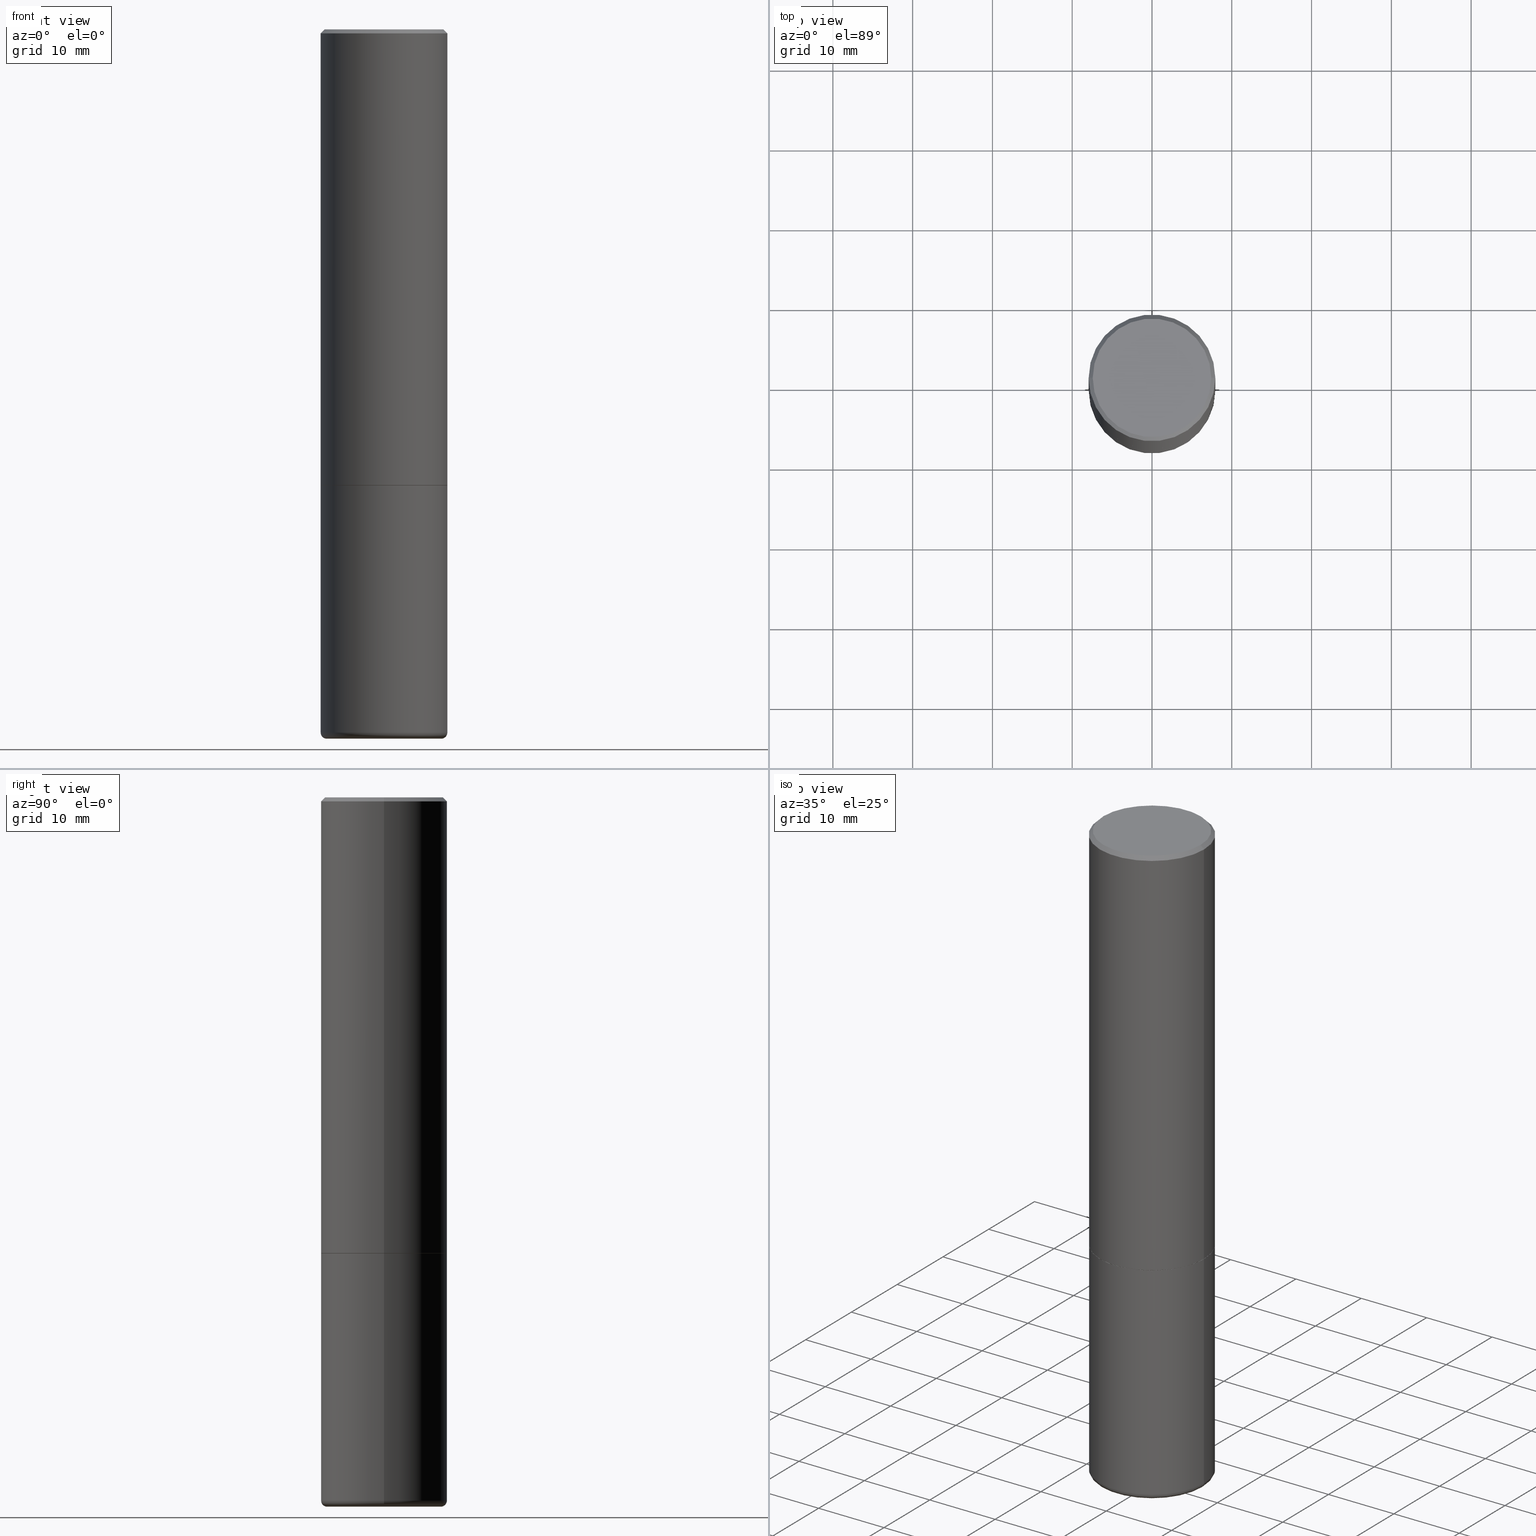
[diagram: canonical four-view strip — front | top / right | iso, engineering-drawing reading convention]
A machine part, canonical four-view strip (front | top / right | iso — engineering-drawing reading convention). The complete STEP part file that produces these views, byte-faithful:
ISO-10303-21;
HEADER;
FILE_DESCRIPTION (( 'STEP AP203' ),
    '1' );
FILE_NAME ('38181.STEP',
    '2023-03-22T20:30:28',
    ( '' ),
    ( '' ),
    'SwSTEP 2.0',
    'SolidWorks 2022',
    '' );
FILE_SCHEMA (( 'CONFIG_CONTROL_DESIGN' ));
ENDSEC;

DATA;
#1 = CIRCLE ( 'NONE', #438, 0.3125000000000000000 ) ;
#2 = ORIENTED_EDGE ( 'NONE', *, *, #403, .T. ) ;
#3 = EDGE_CURVE ( 'NONE', #324, #387, #235, .T. ) ;
#4 = APPROVAL_STATUS ( 'not_yet_approved' ) ;
#5 = DIRECTION ( 'NONE',  ( 1.000000000000000000, -6.982962677686266711E-15, 0.000000000000000000 ) ) ;
#6 = ORIENTED_EDGE ( 'NONE', *, *, #53, .T. ) ;
#7 = ADVANCED_FACE ( 'NONE', ( #125 ), #371, .T. ) ;
#8 = EDGE_CURVE ( 'NONE', #115, #405, #16, .T. ) ;
#9 = PERSON_AND_ORGANIZATION ( #55, #318 ) ;
#10 = AXIS2_PLACEMENT_3D ( 'NONE', #244, #210, #5 ) ;
#11 = APPROVAL_PERSON_ORGANIZATION ( #112, #364, #13 ) ;
#12 = ORIENTED_EDGE ( 'NONE', *, *, #86, .F. ) ;
#13 = APPROVAL_ROLE ( '' ) ;
#14 = DIRECTION ( 'NONE',  ( 1.000000000000000000, -6.982962677686266711E-15, 4.876067333457692840E-29 ) ) ;
#15 = EDGE_CURVE ( 'NONE', #161, #79, #159, .T. ) ;
#16 = LINE ( 'NONE', #155, #21 ) ;
#17 = ORIENTED_EDGE ( 'NONE', *, *, #411, .F. ) ;
#18 = FACE_OUTER_BOUND ( 'NONE', #26, .T. ) ;
#19 = DIRECTION ( 'NONE',  ( -2.445468806185136597E-29, 3.491481338843145583E-15, 1.000000000000000000 ) ) ;
#20 = EDGE_LOOP ( 'NONE', ( #426, #434, #252, #359 ) ) ;
#21 = VECTOR ( 'NONE', #290, 39.37007874015748854 ) ;
#22 = ORIENTED_EDGE ( 'NONE', *, *, #15, .T. ) ;
#23 = DIRECTION ( 'NONE',  ( 1.000000000000000000, -6.982962677686265133E-15, 0.000000000000000000 ) ) ;
#24 = ADVANCED_FACE ( 'NONE', ( #370 ), #67, .T. ) ;
#25 = AXIS2_PLACEMENT_3D ( 'NONE', #80, #386, #211 ) ;
#26 = EDGE_LOOP ( 'NONE', ( #178, #192, #390, #305 ) ) ;
#27 = CARTESIAN_POINT ( 'NONE',  ( 5.502304813916556222E-29, -7.855833012397076871E-15, -2.249999999999999556 ) ) ;
#28 = ORIENTED_EDGE ( 'NONE', *, *, #368, .F. ) ;
#29 = DIRECTION ( 'NONE',  ( -2.445468806185136597E-29, 3.491481338843145583E-15, 1.000000000000000000 ) ) ;
#30 = CARTESIAN_POINT ( 'NONE',  ( 2.182175836777013173E-15, 0.3124999999999921729, -2.250000000000000444 ) ) ;
#31 = CIRCLE ( 'NONE', #325, 0.02999999999999998848 ) ;
#32 = PERSON_AND_ORGANIZATION_ROLE ( 'classification_officer' ) ;
#33 = CARTESIAN_POINT ( 'NONE',  ( -0.3124999999999998335, 2.112346210000093866E-15, -0.02000000000000001776 ) ) ;
#34 = ORIENTED_EDGE ( 'NONE', *, *, #105, .T. ) ;
#35 = DIRECTION ( 'NONE',  ( 0.000000000000000000, 0.000000000000000000, 1.000000000000000000 ) ) ;
#36 = DIRECTION ( 'NONE',  ( -1.000000000000000000, 6.982962677686265922E-15, -4.876176775795935793E-29 ) ) ;
#37 = DIRECTION ( 'NONE',  ( 1.000000000000000000, 0.000000000000000000, 0.000000000000000000 ) ) ;
#38 = DIRECTION ( 'NONE',  ( -2.445468806185136597E-29, 3.491481338843145583E-15, 1.000000000000000000 ) ) ;
#39 = AXIS2_PLACEMENT_3D ( 'NONE', #167, #378, #94 ) ;
#40 = DIRECTION ( 'NONE',  ( -1.000000000000000000, 6.982962677686265133E-15, 0.000000000000000000 ) ) ;
#41 = ORIENTED_EDGE ( 'NONE', *, *, #214, .F. ) ;
#42 = APPROVAL_DATE_TIME ( #97, #158 ) ;
#43 = DATE_TIME_ROLE ( 'classification_date' ) ;
#44 = DIRECTION ( 'NONE',  ( -2.445468806185136877E-29, 3.491481338843145188E-15, 1.000000000000000000 ) ) ;
#45 = AXIS2_PLACEMENT_3D ( 'NONE', #204, #29, #169 ) ;
#46 = ORIENTED_EDGE ( 'NONE', *, *, #187, .F. ) ;
#47 = CARTESIAN_POINT ( 'NONE',  ( 4.890937612370276662E-31, -6.982962677686296539E-17, -0.02000000000000001776 ) ) ;
#48 = DIRECTION ( 'NONE',  ( 1.000000000000000000, -6.982962677686270655E-15, 0.000000000000000000 ) ) ;
#49 = ORIENTED_EDGE ( 'NONE', *, *, #53, .F. ) ;
#50 = APPROVAL ( #420, 'UNSPECIFIED' ) ;
#51 = CARTESIAN_POINT ( 'NONE',  ( 0.3124999999999998335, -2.213735251080465334E-15, -0.02000000000000001776 ) ) ;
#52 = AXIS2_PLACEMENT_3D ( 'NONE', #402, #196, #338 ) ;
#53 = EDGE_CURVE ( 'NONE', #115, #432, #203, .T. ) ;
#54 = VECTOR ( 'NONE', #44, 39.37007874015748143 ) ;
#55 = PERSON ( 'UNSPECIFIED', 'UNSPECIFIED', 'UNSPECIFIED', ('UNSPECIFIED'), ('UNSPECIFIED'), ('UNSPECIFIED') ) ;
#56 = DIRECTION ( 'NONE',  ( -1.000000000000000000, 6.982962677686265922E-15, 0.000000000000000000 ) ) ;
#57 = DIRECTION ( 'NONE',  ( 1.000000000000000000, -6.982962677686269077E-15, 0.000000000000000000 ) ) ;
#58 = LINE ( 'NONE', #165, #60 ) ;
#59 = CONICAL_SURFACE ( 'NONE', #121, 751.2258538476580725, 1.518436449235073038 ) ;
#60 = VECTOR ( 'NONE', #128, 39.37007874015748143 ) ;
#61 = VERTEX_POINT ( 'NONE', #132 ) ;
#62 = CARTESIAN_POINT ( 'NONE',  ( 1.048014358525195474E-27, -1.496286751389202806E-13, -42.85535582684732248 ) ) ;
#63 = PRODUCT_RELATED_PRODUCT_CATEGORY ( 'detail', '', ( #198 ) ) ;
#64 = CARTESIAN_POINT ( 'NONE',  ( 5.502304813916556222E-29, -7.855833012397076871E-15, -2.249999999999999556 ) ) ;
#65 = SECURITY_CLASSIFICATION_LEVEL ( 'unclassified' ) ;
#66 = DIRECTION ( 'NONE',  ( 1.000000000000000000, -6.982962677686266711E-15, 4.876176775795936353E-29 ) ) ;
#67 = TOROIDAL_SURFACE ( 'NONE', #39, 0.2825000000000000289, 0.02999999999999998848 ) ;
#68 = LOCAL_TIME ( 16, 30, 28.00000000000000000, #141 ) ;
#69 = COORDINATED_UNIVERSAL_TIME_OFFSET ( 5, 0, .BEHIND. ) ;
#70 = DIRECTION ( 'NONE',  ( -2.445468806185136597E-29, 3.491481338843145583E-15, 1.000000000000000000 ) ) ;
#71 = CARTESIAN_POINT ( 'NONE',  ( 0.2924999999999998157, -2.110215457714318748E-15, 4.268512490114932791E-18 ) ) ;
#72 = ADVANCED_FACE ( 'NONE', ( #92 ), #242, .T. ) ;
#73 = DIRECTION ( 'NONE',  ( 1.000000000000000000, -6.982962677686266711E-15, 0.000000000000000000 ) ) ;
#74 = CIRCLE ( 'NONE', #45, 0.2809299213127118833 ) ;
#75 =( LENGTH_UNIT ( ) NAMED_UNIT ( * ) SI_UNIT ( $, .METRE. ) );
#76 =( GEOMETRIC_REPRESENTATION_CONTEXT ( 3 ) GLOBAL_UNCERTAINTY_ASSIGNED_CONTEXT ( ( #337 ) ) GLOBAL_UNIT_ASSIGNED_CONTEXT ( ( #385, #319, #354 ) ) REPRESENTATION_CONTEXT ( 'NONE', 'WORKASPACE' ) );
#77 = VERTEX_POINT ( 'NONE', #133 ) ;
#78 = DIRECTION ( 'NONE',  ( -0.7071067811864267805, 7.493145998869918709E-15, 0.7071067811866682540 ) ) ;
#79 = VERTEX_POINT ( 'NONE', #344 ) ;
#80 = CARTESIAN_POINT ( 'NONE',  ( 8.485877300362652309E-29, -1.211558379440060973E-14, -3.470041113957361922 ) ) ;
#81 = SHAPE_DEFINITION_REPRESENTATION ( #207, #416 ) ;
#82 = CIRCLE ( 'NONE', #199, 0.3125000000000000000 ) ;
#83 = EDGE_LOOP ( 'NONE', ( #296, #17, #131, #163 ) ) ;
#84 = DIMENSIONAL_EXPONENTS ( 1.000000000000000000, 0.000000000000000000, 0.000000000000000000, 0.000000000000000000, 0.000000000000000000, 0.000000000000000000, 0.000000000000000000 ) ;
#85 = CARTESIAN_POINT ( 'NONE',  ( 0.3124999999999998890, -2.182175836776957558E-15, 1.523805242436229235E-29 ) ) ;
#86 = EDGE_CURVE ( 'NONE', #161, #123, #269, .T. ) ;
#87 = ORIENTED_EDGE ( 'NONE', *, *, #397, .T. ) ;
#88 = CIRCLE ( 'NONE', #400, 0.3114999999999999991 ) ;
#89 = APPROVAL_PERSON_ORGANIZATION ( #440, #50, #249 ) ;
#90 = DIRECTION ( 'NONE',  ( 0.7071067811864267805, -2.468850131080992517E-15, 0.7071067811866682540 ) ) ;
#91 = EDGE_CURVE ( 'NONE', #61, #118, #308, .T. ) ;
#92 = FACE_OUTER_BOUND ( 'NONE', #321, .T. ) ;
#93 = DIRECTION ( 'NONE',  ( -2.445468806185136597E-29, 3.491481338843145583E-15, 1.000000000000000000 ) ) ;
#94 = DIRECTION ( 'NONE',  ( 1.000000000000000000, -6.982962677686269077E-15, 4.883557194083114022E-29 ) ) ;
#95 = EDGE_CURVE ( 'NONE', #77, #189, #423, .T. ) ;
#96 = EDGE_CURVE ( 'NONE', #405, #432, #74, .T. ) ;
#97 = DATE_AND_TIME ( #282, #286 ) ;
#98 = DIRECTION ( 'NONE',  ( -2.445468806185136597E-29, 3.491481338843145583E-15, 1.000000000000000000 ) ) ;
#99 = ADVANCED_FACE ( 'NONE', ( #439 ), #226, .F. ) ;
#100 = DIRECTION ( 'NONE',  ( -2.445468806185136597E-29, 3.491481338843145583E-15, 1.000000000000000000 ) ) ;
#101 = AXIS2_PLACEMENT_3D ( 'NONE', #248, #100, #181 ) ;
#102 = LOCAL_TIME ( 16, 30, 28.00000000000000000, #106 ) ;
#103 = FACE_OUTER_BOUND ( 'NONE', #246, .T. ) ;
#104 = CC_DESIGN_PERSON_AND_ORGANIZATION_ASSIGNMENT ( #284, #237, ( #334 ) ) ;
#105 = EDGE_CURVE ( 'NONE', #189, #77, #357, .T. ) ;
#106 = COORDINATED_UNIVERSAL_TIME_OFFSET ( 5, 0, .BEHIND. ) ;
#107 = CARTESIAN_POINT ( 'NONE',  ( -0.3125000000000000000, -7.765262354148530218E-15, -3.470041113957361922 ) ) ;
#108 = ORIENTED_EDGE ( 'NONE', *, *, #327, .T. ) ;
#109 = ORIENTED_EDGE ( 'NONE', *, *, #360, .T. ) ;
#110 = ORIENTED_EDGE ( 'NONE', *, *, #113, .F. ) ;
#111 = AXIS2_PLACEMENT_3D ( 'NONE', #442, #38, #441 ) ;
#112 = PERSON_AND_ORGANIZATION ( #55, #318 ) ;
#113 = EDGE_CURVE ( 'NONE', #123, #161, #88, .T. ) ;
#114 = EDGE_LOOP ( 'NONE', ( #202, #168 ) ) ;
#115 = VERTEX_POINT ( 'NONE', #433 ) ;
#116 = DIRECTION ( 'NONE',  ( -1.000000000000000000, 6.982962677686265922E-15, 0.000000000000000000 ) ) ;
#117 = EDGE_LOOP ( 'NONE', ( #49, #304, #41 ) ) ;
#118 = VERTEX_POINT ( 'NONE', #437 ) ;
#119 = COORDINATED_UNIVERSAL_TIME_OFFSET ( 5, 0, .BEHIND. ) ;
#120 = CARTESIAN_POINT ( 'NONE',  ( -1.043851414335219820E-46, 1.490343170380447200E-32, 4.268512490100411279E-18 ) ) ;
#121 = AXIS2_PLACEMENT_3D ( 'NONE', #425, #209, #116 ) ;
#122 = ADVANCED_FACE ( 'NONE', ( #345 ), #127, .F. ) ;
#123 = VERTEX_POINT ( 'NONE', #173 ) ;
#124 = ADVANCED_FACE ( 'NONE', ( #410 ), #333, .T. ) ;
#125 = FACE_OUTER_BOUND ( 'NONE', #283, .T. ) ;
#126 = AXIS2_PLACEMENT_3D ( 'NONE', #218, #361, #188 ) ;
#127 = PLANE ( 'NONE',  #407 ) ;
#128 = DIRECTION ( 'NONE',  ( -2.445468806185136877E-29, 3.491481338843145188E-15, 1.000000000000000000 ) ) ;
#129 = ADVANCED_FACE ( 'NONE', ( #307 ), #138, .T. ) ;
#130 = APPLICATION_CONTEXT ( 'configuration controlled 3d designs of mechanical parts and assemblies' ) ;
#131 = ORIENTED_EDGE ( 'NONE', *, *, #136, .T. ) ;
#132 = CARTESIAN_POINT ( 'NONE',  ( -0.3125000000000000000, -7.765262354148530218E-15, -2.249999999999999556 ) ) ;
#133 = CARTESIAN_POINT ( 'NONE',  ( 0.3125000000000000000, -1.429775963117756807E-14, -3.470041113957361922 ) ) ;
#134 = VECTOR ( 'NONE', #228, 39.37007874015748143 ) ;
#135 = MANIFOLD_SOLID_BREP ( 'Body-Move/Copy2[2]', #350 ) ;
#136 = EDGE_CURVE ( 'NONE', #387, #392, #205, .T. ) ;
#137 = ORIENTED_EDGE ( 'NONE', *, *, #201, .F. ) ;
#138 = CYLINDRICAL_SURFACE ( 'NONE', #383, 0.3125000000000000000 ) ;
#139 = PERSON_AND_ORGANIZATION_ROLE ( 'design_owner' ) ;
#140 = CARTESIAN_POINT ( 'NONE',  ( 0.000000000000000000, 0.000000000000000000, 0.000000000000000000 ) ) ;
#141 = COORDINATED_UNIVERSAL_TIME_OFFSET ( 5, 0, .BEHIND. ) ;
#142 = DIRECTION ( 'NONE',  ( 7.105427357601001859E-15, 1.000000000000000000, -3.491481338843145583E-15 ) ) ;
#143 = VECTOR ( 'NONE', #310, 39.37007874015748854 ) ;
#144 = DIRECTION ( 'NONE',  ( 2.445468806185136597E-29, -3.491481338843145583E-15, -1.000000000000000000 ) ) ;
#145 = ORIENTED_EDGE ( 'NONE', *, *, #3, .F. ) ;
#146 = APPROVAL_ROLE ( '' ) ;
#147 = PERSON_AND_ORGANIZATION_ROLE ( 'creator' ) ;
#148 = ORIENTED_EDGE ( 'NONE', *, *, #379, .F. ) ;
#149 = AXIS2_PLACEMENT_3D ( 'NONE', #62, #409, #56 ) ;
#150 = CC_DESIGN_APPROVAL ( #158, ( #231 ) ) ;
#151 = ORIENTED_EDGE ( 'NONE', *, *, #368, .T. ) ;
#152 = CC_DESIGN_PERSON_AND_ORGANIZATION_ASSIGNMENT ( #273, #418, ( #231 ) ) ;
#153 = CARTESIAN_POINT ( 'NONE',  ( 4.890937612370276662E-31, -6.982962677686296539E-17, -0.02000000000000001776 ) ) ;
#154 = CARTESIAN_POINT ( 'NONE',  ( 5.502304813916556222E-29, -7.855833012397075293E-15, -2.249999999999999556 ) ) ;
#155 = CARTESIAN_POINT ( 'NONE',  ( 2.316333982880943859E-19, -1.216877990887518899E-14, -3.485277086689842374 ) ) ;
#156 = EDGE_LOOP ( 'NONE', ( #429, #6, #421 ) ) ;
#157 = CARTESIAN_POINT ( 'NONE',  ( 0.000000000000000000, 0.000000000000000000, 0.000000000000000000 ) ) ;
#158 = APPROVAL ( #4, 'UNSPECIFIED' ) ;
#159 = LINE ( 'NONE', #294, #316 ) ;
#160 = EDGE_CURVE ( 'NONE', #330, #79, #213, .T. ) ;
#161 = VERTEX_POINT ( 'NONE', #404 ) ;
#162 = AXIS2_PLACEMENT_3D ( 'NONE', #271, #375, #57 ) ;
#163 = ORIENTED_EDGE ( 'NONE', *, *, #187, .T. ) ;
#164 = FACE_OUTER_BOUND ( 'NONE', #250, .T. ) ;
#165 = CARTESIAN_POINT ( 'NONE',  ( -0.3125000000000000000, 2.220446049250313081E-15, -1.537167215704658232E-29 ) ) ;
#166 = CIRCLE ( 'NONE', #186, 0.2809299213127118833 ) ;
#167 = CARTESIAN_POINT ( 'NONE',  ( 8.485877300362652309E-29, -1.211558379440060973E-14, -3.470041113957361922 ) ) ;
#168 = ORIENTED_EDGE ( 'NONE', *, *, #3, .T. ) ;
#169 = DIRECTION ( 'NONE',  ( 1.000000000000000000, -6.982962677686266711E-15, 0.000000000000000000 ) ) ;
#170 = DIRECTION ( 'NONE',  ( -2.445468806185136597E-29, 3.491481338843145583E-15, 1.000000000000000000 ) ) ;
#171 = CIRCLE ( 'NONE', #10, 0.3124999999999998335 ) ;
#172 = COORDINATED_UNIVERSAL_TIME_OFFSET ( 5, 0, .BEHIND. ) ;
#173 = CARTESIAN_POINT ( 'NONE',  ( -0.3114999999999999991, -5.637193936156142396E-15, -2.249999999999999556 ) ) ;
#174 = PERSON_AND_ORGANIZATION ( #55, #318 ) ;
#175 = FACE_OUTER_BOUND ( 'NONE', #156, .T. ) ;
#176 = CARTESIAN_POINT ( 'NONE',  ( 8.559140821647976968E-29, -1.222018468595100619E-14, -3.499999999999999112 ) ) ;
#177 = CC_DESIGN_PERSON_AND_ORGANIZATION_ASSIGNMENT ( #174, #139, ( #198 ) ) ;
#178 = ORIENTED_EDGE ( 'NONE', *, *, #280, .T. ) ;
#179 = AXIS2_PLACEMENT_3D ( 'NONE', #341, #229, #236 ) ;
#180 = AXIS2_PLACEMENT_3D ( 'NONE', #382, #220, #366 ) ;
#181 = DIRECTION ( 'NONE',  ( 1.000000000000000000, -6.982962677686266711E-15, 4.876176775795935232E-29 ) ) ;
#182 = DATE_AND_TIME ( #275, #68 ) ;
#183 = ADVANCED_FACE ( 'NONE', ( #164 ), #302, .T. ) ;
#184 = DIRECTION ( 'NONE',  ( -2.445468806185136597E-29, 3.491481338843145583E-15, 1.000000000000000000 ) ) ;
#185 = LINE ( 'NONE', #272, #134 ) ;
#186 = AXIS2_PLACEMENT_3D ( 'NONE', #176, #314, #73 ) ;
#187 = EDGE_CURVE ( 'NONE', #392, #417, #171, .T. ) ;
#188 = DIRECTION ( 'NONE',  ( -1.000000000000000000, 6.982962677686265133E-15, 0.000000000000000000 ) ) ;
#189 = VERTEX_POINT ( 'NONE', #107 ) ;
#190 = CARTESIAN_POINT ( 'NONE',  ( -0.3125000000000000000, -1.740639529667232739E-15, -2.248999999999999222 ) ) ;
#191 = EDGE_LOOP ( 'NONE', ( #261, #87, #336, #28 ) ) ;
#192 = ORIENTED_EDGE ( 'NONE', *, *, #408, .T. ) ;
#193 = AXIS2_PLACEMENT_3D ( 'NONE', #332, #19, #300 ) ;
#194 = LINE ( 'NONE', #195, #326 ) ;
#195 = CARTESIAN_POINT ( 'NONE',  ( -0.3114999999999999991, -5.642492390504364798E-15, -2.249999999999999556 ) ) ;
#196 = DIRECTION ( 'NONE',  ( -2.445468806185136597E-29, 3.491481338843145583E-15, 1.000000000000000000 ) ) ;
#197 = DIRECTION ( 'NONE',  ( 1.000000000000000000, -6.982962677686265922E-15, 0.000000000000000000 ) ) ;
#198 = PRODUCT ( '38181', '38181', '', ( #377 ) ) ;
#199 = AXIS2_PLACEMENT_3D ( 'NONE', #427, #274, #241 ) ;
#200 = VECTOR ( 'NONE', #260, 39.37007874015748854 ) ;
#201 = EDGE_CURVE ( 'NONE', #432, #189, #31, .T. ) ;
#202 = ORIENTED_EDGE ( 'NONE', *, *, #411, .T. ) ;
#203 = LINE ( 'NONE', #374, #285 ) ;
#204 = CARTESIAN_POINT ( 'NONE',  ( 8.559140821647976968E-29, -1.222018468595100619E-14, -3.499999999999999112 ) ) ;
#205 = LINE ( 'NONE', #33, #143 ) ;
#206 = AXIS2_PLACEMENT_3D ( 'NONE', #268, #369, #23 ) ;
#207 = PRODUCT_DEFINITION_SHAPE ( 'NONE', 'NONE',  #231 ) ;
#208 = LOCAL_TIME ( 16, 30, 28.00000000000000000, #119 ) ;
#209 = DIRECTION ( 'NONE',  ( 2.445468806185136597E-29, -3.491481338843145583E-15, -1.000000000000000000 ) ) ;
#210 = DIRECTION ( 'NONE',  ( -2.445468806185136597E-29, 3.491481338843145583E-15, 1.000000000000000000 ) ) ;
#211 = DIRECTION ( 'NONE',  ( 1.000000000000000000, -6.982962677686269077E-15, 4.883557194083114022E-29 ) ) ;
#212 = ORIENTED_EDGE ( 'NONE', *, *, #397, .F. ) ;
#213 = CIRCLE ( 'NONE', #52, 0.3125000000000000000 ) ;
#214 = EDGE_CURVE ( 'NONE', #432, #405, #166, .T. ) ;
#215 = ORIENTED_EDGE ( 'NONE', *, *, #136, .F. ) ;
#216 = ADVANCED_FACE ( 'NONE', ( #276 ), #355, .T. ) ;
#217 = LINE ( 'NONE', #335, #54 ) ;
#218 = CARTESIAN_POINT ( 'NONE',  ( 4.890937612370276662E-31, -6.982962677686296539E-17, -0.02000000000000001776 ) ) ;
#219 = ORIENTED_EDGE ( 'NONE', *, *, #280, .F. ) ;
#220 = DIRECTION ( 'NONE',  ( -2.438088387897960049E-29, 3.491481338843145188E-15, 1.000000000000000000 ) ) ;
#221 = AXIS2_PLACEMENT_3D ( 'NONE', #157, #393, #320 ) ;
#222 = CALENDAR_DATE ( 2023, 22, 3 ) ;
#223 = APPROVAL_PERSON_ORGANIZATION ( #381, #158, #146 ) ;
#224 = DESIGN_CONTEXT ( 'detailed design', #328, 'design' ) ;
#225 = ORIENTED_EDGE ( 'NONE', *, *, #113, .T. ) ;
#226 = CONICAL_SURFACE ( 'NONE', #149, 751.2258538476580725, 1.518436449235073038 ) ;
#227 = CC_DESIGN_APPROVAL ( #50, ( #334 ) ) ;
#228 = DIRECTION ( 'NONE',  ( -2.445468806185136877E-29, 3.491481338843145188E-15, 1.000000000000000000 ) ) ;
#229 = DIRECTION ( 'NONE',  ( -2.445468806185136597E-29, 3.491481338843145583E-15, 1.000000000000000000 ) ) ;
#230 = DIRECTION ( 'NONE',  ( -1.000000000000000000, 6.982962677686265922E-15, -4.876176775795935793E-29 ) ) ;
#231 = PRODUCT_DEFINITION ( 'UNKNOWN', '', #334, #224 ) ;
#232 = CC_DESIGN_DATE_AND_TIME_ASSIGNMENT ( #358, #43, ( #264 ) ) ;
#233 = ADVANCED_FACE ( 'NONE', ( #18 ), #419, .T. ) ;
#234 = CARTESIAN_POINT ( 'NONE',  ( 5.502304813916556222E-29, -7.855833012397076871E-15, -2.249999999999999556 ) ) ;
#235 = CIRCLE ( 'NONE', #193, 0.2924999999999998157 ) ;
#236 = DIRECTION ( 'NONE',  ( 1.000000000000000000, -6.982962677686265922E-15, 0.000000000000000000 ) ) ;
#237 = PERSON_AND_ORGANIZATION_ROLE ( 'design_supplier' ) ;
#238 = DIRECTION ( 'NONE',  ( -2.445468806185136597E-29, 3.491481338843145583E-15, 1.000000000000000000 ) ) ;
#239 = ADVANCED_FACE ( 'NONE', ( #414 ), #415, .T. ) ;
#240 = CARTESIAN_POINT ( 'NONE',  ( 0.000000000000000000, 0.000000000000000000, 0.000000000000000000 ) ) ;
#241 = DIRECTION ( 'NONE',  ( 1.000000000000000000, -6.982962677686269077E-15, 0.000000000000000000 ) ) ;
#242 = CONICAL_SURFACE ( 'NONE', #388, 0.3114999999999999991, 0.7853981633972775267 ) ;
#243 = CC_DESIGN_DATE_AND_TIME_ASSIGNMENT ( #413, #311, ( #231 ) ) ;
#244 = CARTESIAN_POINT ( 'NONE',  ( 4.890937612370276662E-31, -6.982962677686296539E-17, -0.02000000000000001776 ) ) ;
#245 = LINE ( 'NONE', #85, #340 ) ;
#246 = EDGE_LOOP ( 'NONE', ( #12, #110 ) ) ;
#247 = LENGTH_MEASURE_WITH_UNIT ( LENGTH_MEASURE( 0.02539999999999999897 ), #75 );
#248 = CARTESIAN_POINT ( 'NONE',  ( 0.000000000000000000, 0.000000000000000000, 0.000000000000000000 ) ) ;
#249 = APPROVAL_ROLE ( '' ) ;
#250 = EDGE_LOOP ( 'NONE', ( #212, #34, #151, #424 ) ) ;
#251 = ORIENTED_EDGE ( 'NONE', *, *, #15, .F. ) ;
#252 = ORIENTED_EDGE ( 'NONE', *, *, #95, .F. ) ;
#253 = EDGE_LOOP ( 'NONE', ( #291, #398, #2, #46 ) ) ;
#254 = PLANE ( 'NONE',  #180 ) ;
#255 = DIRECTION ( 'NONE',  ( -2.445468806185136877E-29, 3.491481338843145188E-15, 1.000000000000000000 ) ) ;
#256 = ORIENTED_EDGE ( 'NONE', *, *, #214, .T. ) ;
#257 = CIRCLE ( 'NONE', #372, 0.3124999999999998335 ) ;
#258 = CIRCLE ( 'NONE', #365, 0.02999999999999998848 ) ;
#259 = DIRECTION ( 'NONE',  ( -2.445468806185136597E-29, 3.491481338843145583E-15, 1.000000000000000000 ) ) ;
#260 = DIRECTION ( 'NONE',  ( 0.7071067811865469066, -7.319954787623252890E-15, -0.7071067811865479058 ) ) ;
#261 = ORIENTED_EDGE ( 'NONE', *, *, #95, .T. ) ;
#262 = ADVANCED_FACE ( 'NONE', ( #356 ), #339, .T. ) ;
#263 = ORIENTED_EDGE ( 'NONE', *, *, #376, .T. ) ;
#264 = SECURITY_CLASSIFICATION ( '', '', #65 ) ;
#265 = DIRECTION ( 'NONE',  ( 1.000000000000000000, -6.982962677686265922E-15, 0.000000000000000000 ) ) ;
#266 = ORIENTED_EDGE ( 'NONE', *, *, #431, .T. ) ;
#267 = DIRECTION ( 'NONE',  ( 2.438088387897960049E-29, -3.491481338843145188E-15, -1.000000000000000000 ) ) ;
#268 = CARTESIAN_POINT ( 'NONE',  ( 5.502304813916556222E-29, -7.855833012397075293E-15, -2.249999999999999556 ) ) ;
#269 = CIRCLE ( 'NONE', #179, 0.3114999999999999991 ) ;
#270 = AXIS2_PLACEMENT_3D ( 'NONE', #412, #353, #36 ) ;
#271 = CARTESIAN_POINT ( 'NONE',  ( 8.485877300362652309E-29, -1.211558379440060973E-14, -3.470041113957361922 ) ) ;
#272 = CARTESIAN_POINT ( 'NONE',  ( 0.3125000000000000000, -2.182175836776958347E-15, 1.523805242436230075E-29 ) ) ;
#273 = PERSON_AND_ORGANIZATION ( #55, #318 ) ;
#274 = DIRECTION ( 'NONE',  ( -2.445468806185136597E-29, 3.491481338843145583E-15, 1.000000000000000000 ) ) ;
#275 = CALENDAR_DATE ( 2023, 22, 3 ) ;
#276 = FACE_OUTER_BOUND ( 'NONE', #253, .T. ) ;
#277 = CC_DESIGN_SECURITY_CLASSIFICATION ( #264, ( #334 ) ) ;
#278 = APPLICATION_PROTOCOL_DEFINITION ( 'international standard', 'config_control_design', 1994, #328 ) ;
#279 = DIRECTION ( 'NONE',  ( 1.000000000000000000, -6.982962677686266711E-15, 0.000000000000000000 ) ) ;
#280 = EDGE_CURVE ( 'NONE', #79, #330, #82, .T. ) ;
#281 = ORIENTED_EDGE ( 'NONE', *, *, #105, .F. ) ;
#282 = CALENDAR_DATE ( 2023, 22, 3 ) ;
#283 = EDGE_LOOP ( 'NONE', ( #145, #263, #108, #215 ) ) ;
#284 = PERSON_AND_ORGANIZATION ( #55, #318 ) ;
#285 = VECTOR ( 'NONE', #303, 39.37007874015748854 ) ;
#286 = LOCAL_TIME ( 16, 30, 28.00000000000000000, #69 ) ;
#287 = APPROVAL_DATE_TIME ( #394, #364 ) ;
#288 = DIRECTION ( 'NONE',  ( -1.000000000000000000, 7.105427357600993970E-15, 0.000000000000000000 ) ) ;
#289 = CARTESIAN_POINT ( 'NONE',  ( -0.2809299213127118833, -1.005959764131863311E-14, -3.499999999999999112 ) ) ;
#290 = DIRECTION ( 'NONE',  ( 0.9986295347545742773, -7.033825938272000278E-15, -0.05233595624293753412 ) ) ;
#291 = ORIENTED_EDGE ( 'NONE', *, *, #408, .F. ) ;
#292 = PLANE ( 'NONE',  #270 ) ;
#293 = CARTESIAN_POINT ( 'NONE',  ( 0.2809299213127118833, -1.418190784152301404E-14, -3.499999999999999112 ) ) ;
#294 = CARTESIAN_POINT ( 'NONE',  ( 0.3114999999999999991, -1.003102588649634920E-14, -2.249999999999999556 ) ) ;
#295 = LINE ( 'NONE', #51, #200 ) ;
#296 = ORIENTED_EDGE ( 'NONE', *, *, #376, .F. ) ;
#297 = CLOSED_SHELL ( 'NONE', ( #99, #24, #129, #122, #183, #239, #298 ) ) ;
#298 = ADVANCED_FACE ( 'NONE', ( #175 ), #59, .F. ) ;
#299 = CARTESIAN_POINT ( 'NONE',  ( 0.3124999999999998335, -2.213735251080465334E-15, -0.02000000000000001776 ) ) ;
#300 = DIRECTION ( 'NONE',  ( 1.000000000000000000, -6.982962677686266711E-15, 4.876067333457692840E-29 ) ) ;
#301 = AXIS2_PLACEMENT_3D ( 'NONE', #240, #35, #37 ) ;
#302 = CYLINDRICAL_SURFACE ( 'NONE', #111, 0.3125000000000000000 ) ;
#303 = DIRECTION ( 'NONE',  ( -0.9986295347545742773, 6.790662755453663733E-15, -0.05233595624293753412 ) ) ;
#304 = ORIENTED_EDGE ( 'NONE', *, *, #8, .T. ) ;
#305 = ORIENTED_EDGE ( 'NONE', *, *, #403, .F. ) ;
#306 = DIRECTION ( 'NONE',  ( -2.445468806185136597E-29, 3.491481338843145583E-15, 1.000000000000000000 ) ) ;
#307 = FACE_OUTER_BOUND ( 'NONE', #191, .T. ) ;
#308 = CIRCLE ( 'NONE', #206, 0.3125000000000000000 ) ;
#309 = CALENDAR_DATE ( 2023, 22, 3 ) ;
#310 = DIRECTION ( 'NONE',  ( -0.7071067811865469066, 2.468850131082251144E-15, -0.7071067811865479058 ) ) ;
#311 = DATE_TIME_ROLE ( 'creation_date' ) ;
#312 = CARTESIAN_POINT ( 'NONE',  ( -0.2825000000000000289, -1.010830056587832689E-14, -3.470041113957361922 ) ) ;
#313 = APPLICATION_PROTOCOL_DEFINITION ( 'international standard', 'config_control_design', 1994, #130 ) ;
#314 = DIRECTION ( 'NONE',  ( -2.445468806185136597E-29, 3.491481338843145583E-15, 1.000000000000000000 ) ) ;
#315 = ADVANCED_FACE ( 'NONE', ( #103 ), #254, .F. ) ;
#316 = VECTOR ( 'NONE', #90, 39.37007874015748143 ) ;
#317 = EDGE_LOOP ( 'NONE', ( #266, #373 ) ) ;
#318 = ORGANIZATION ( 'UNSPECIFIED', 'UNSPECIFIED', '' ) ;
#319 =( NAMED_UNIT ( * ) PLANE_ANGLE_UNIT ( ) SI_UNIT ( $, .RADIAN. ) );
#320 = DIRECTION ( 'NONE',  ( 1.000000000000000000, -6.982962677686266711E-15, 4.876176775795935232E-29 ) ) ;
#321 = EDGE_LOOP ( 'NONE', ( #148, #225, #22, #384 ) ) ;
#322 = APPROVAL_DATE_TIME ( #182, #50 ) ;
#323 = DIRECTION ( 'NONE',  ( -6.982962677686266711E-15, -1.000000000000000000, 3.491481338843145583E-15 ) ) ;
#324 = VERTEX_POINT ( 'NONE', #71 ) ;
#325 = AXIS2_PLACEMENT_3D ( 'NONE', #312, #142, #288 ) ;
#326 = VECTOR ( 'NONE', #78, 39.37007874015748143 ) ;
#327 = EDGE_CURVE ( 'NONE', #417, #392, #257, .T. ) ;
#328 = APPLICATION_CONTEXT ( 'configuration controlled 3d designs of mechanical parts and assemblies' ) ;
#329 = CARTESIAN_POINT ( 'NONE',  ( -0.2924999999999998157, 2.077431396611662611E-15, 4.268512490086005323E-18 ) ) ;
#330 = VERTEX_POINT ( 'NONE', #190 ) ;
#331 = FACE_OUTER_BOUND ( 'NONE', #114, .T. ) ;
#332 = CARTESIAN_POINT ( 'NONE',  ( -1.043851414335219820E-46, 1.490343170380447200E-32, 4.268512490100411279E-18 ) ) ;
#333 = CONICAL_SURFACE ( 'NONE', #363, 0.3114999999999999991, 0.7853981633972775267 ) ;
#334 = PRODUCT_DEFINITION_FORMATION_WITH_SPECIFIED_SOURCE ( 'ANY', '', #198, .NOT_KNOWN. ) ;
#335 = CARTESIAN_POINT ( 'NONE',  ( -0.3124999999999998890, 2.220446049250312292E-15, -1.537167215704657391E-29 ) ) ;
#336 = ORIENTED_EDGE ( 'NONE', *, *, #431, .F. ) ;
#337 = UNCERTAINTY_MEASURE_WITH_UNIT (LENGTH_MEASURE( 1.000000000000000082E-05 ), #385, 'distance_accuracy_value', 'NONE');
#338 = DIRECTION ( 'NONE',  ( 1.000000000000000000, -6.982962677686269077E-15, 0.000000000000000000 ) ) ;
#339 = CONICAL_SURFACE ( 'NONE', #395, 0.3124999999999998335, 0.7853981633974476129 ) ;
#340 = VECTOR ( 'NONE', #255, 39.37007874015748143 ) ;
#341 = CARTESIAN_POINT ( 'NONE',  ( 5.502304813916556222E-29, -7.855833012397076871E-15, -2.249999999999999556 ) ) ;
#342 = CC_DESIGN_PERSON_AND_ORGANIZATION_ASSIGNMENT ( #348, #32, ( #264 ) ) ;
#343 = ORIENTED_EDGE ( 'NONE', *, *, #379, .T. ) ;
#344 = CARTESIAN_POINT ( 'NONE',  ( 0.3125000000000000000, -1.003451736783519063E-14, -2.248999999999999222 ) ) ;
#345 = FACE_OUTER_BOUND ( 'NONE', #317, .T. ) ;
#346 = CARTESIAN_POINT ( 'NONE',  ( -0.3124999999999998335, 2.112346210000093866E-15, -0.02000000000000001776 ) ) ;
#347 = ADVANCED_FACE ( 'NONE', ( #331 ), #292, .F. ) ;
#348 = PERSON_AND_ORGANIZATION ( #55, #318 ) ;
#349 = DIRECTION ( 'NONE',  ( 1.000000000000000000, -6.982962677686269077E-15, 0.000000000000000000 ) ) ;
#350 = CLOSED_SHELL ( 'NONE', ( #124, #233, #7, #262, #216, #72, #315, #347 ) ) ;
#351 = CC_DESIGN_APPROVAL ( #364, ( #264 ) ) ;
#352 = CALENDAR_DATE ( 2023, 22, 3 ) ;
#353 = DIRECTION ( 'NONE',  ( 2.438088387897960049E-29, -3.491481338843145188E-15, -1.000000000000000000 ) ) ;
#354 =( NAMED_UNIT ( * ) SI_UNIT ( $, .STERADIAN. ) SOLID_ANGLE_UNIT ( ) );
#355 = CYLINDRICAL_SURFACE ( 'NONE', #101, 0.3124999999999998890 ) ;
#356 = FACE_OUTER_BOUND ( 'NONE', #83, .T. ) ;
#357 = CIRCLE ( 'NONE', #162, 0.3125000000000000000 ) ;
#358 = DATE_AND_TIME ( #309, #389 ) ;
#359 = ORIENTED_EDGE ( 'NONE', *, *, #360, .F. ) ;
#360 = EDGE_CURVE ( 'NONE', #405, #77, #258, .T. ) ;
#361 = DIRECTION ( 'NONE',  ( 2.445468806185136597E-29, -3.491481338843145583E-15, -1.000000000000000000 ) ) ;
#362 = EDGE_LOOP ( 'NONE', ( #137, #256, #109, #281 ) ) ;
#363 = AXIS2_PLACEMENT_3D ( 'NONE', #27, #170, #197 ) ;
#364 = APPROVAL ( #391, 'UNSPECIFIED' ) ;
#365 = AXIS2_PLACEMENT_3D ( 'NONE', #380, #323, #48 ) ;
#366 = DIRECTION ( 'NONE',  ( 1.000000000000000000, -6.982962677686265922E-15, 4.876176775795935793E-29 ) ) ;
#367 = EDGE_LOOP ( 'NONE', ( #436, #343, #219, #251 ) ) ;
#368 = EDGE_CURVE ( 'NONE', #77, #118, #185, .T. ) ;
#369 = DIRECTION ( 'NONE',  ( -2.445468806185136597E-29, 3.491481338843145583E-15, 1.000000000000000000 ) ) ;
#370 = FACE_OUTER_BOUND ( 'NONE', #20, .T. ) ;
#371 = CONICAL_SURFACE ( 'NONE', #126, 0.3124999999999998335, 0.7853981633974476129 ) ;
#372 = AXIS2_PLACEMENT_3D ( 'NONE', #47, #70, #279 ) ;
#373 = ORIENTED_EDGE ( 'NONE', *, *, #91, .T. ) ;
#374 = CARTESIAN_POINT ( 'NONE',  ( -2.316333981176316747E-19, -1.216877990887518899E-14, -3.485277086689842374 ) ) ;
#375 = DIRECTION ( 'NONE',  ( -2.445468806185136597E-29, 3.491481338843145583E-15, 1.000000000000000000 ) ) ;
#376 = EDGE_CURVE ( 'NONE', #324, #417, #295, .T. ) ;
#377 = MECHANICAL_CONTEXT ( 'NONE', #130, 'mechanical' ) ;
#378 = DIRECTION ( 'NONE',  ( -2.445468806185136597E-29, 3.491481338843145583E-15, 1.000000000000000000 ) ) ;
#379 = EDGE_CURVE ( 'NONE', #123, #330, #194, .T. ) ;
#380 = CARTESIAN_POINT ( 'NONE',  ( 0.2825000000000000289, -1.408827075084698134E-14, -3.470041113957361922 ) ) ;
#381 = PERSON_AND_ORGANIZATION ( #55, #318 ) ;
#382 = CARTESIAN_POINT ( 'NONE',  ( 5.502304813916556222E-29, -7.855833012397076871E-15, -2.249999999999999556 ) ) ;
#383 = AXIS2_PLACEMENT_3D ( 'NONE', #140, #238, #66 ) ;
#384 = ORIENTED_EDGE ( 'NONE', *, *, #160, .F. ) ;
#385 =( CONVERSION_BASED_UNIT ( 'INCH', #247 ) LENGTH_UNIT ( ) NAMED_UNIT ( #84 ) );
#386 = DIRECTION ( 'NONE',  ( -2.445468806185136597E-29, 3.491481338843145583E-15, 1.000000000000000000 ) ) ;
#387 = VERTEX_POINT ( 'NONE', #329 ) ;
#388 = AXIS2_PLACEMENT_3D ( 'NONE', #234, #98, #435 ) ;
#389 = LOCAL_TIME ( 16, 30, 28.00000000000000000, #172 ) ;
#390 = ORIENTED_EDGE ( 'NONE', *, *, #327, .F. ) ;
#391 = APPROVAL_STATUS ( 'not_yet_approved' ) ;
#392 = VERTEX_POINT ( 'NONE', #346 ) ;
#393 = DIRECTION ( 'NONE',  ( -2.445468806185136597E-29, 3.491481338843145583E-15, 1.000000000000000000 ) ) ;
#394 = DATE_AND_TIME ( #222, #208 ) ;
#395 = AXIS2_PLACEMENT_3D ( 'NONE', #153, #144, #40 ) ;
#396 = CIRCLE ( 'NONE', #401, 0.2924999999999998157 ) ;
#397 = EDGE_CURVE ( 'NONE', #189, #61, #58, .T. ) ;
#398 = ORIENTED_EDGE ( 'NONE', *, *, #160, .T. ) ;
#399 = DIRECTION ( 'NONE',  ( 1.000000000000000000, -6.982962677686265133E-15, 0.000000000000000000 ) ) ;
#400 = AXIS2_PLACEMENT_3D ( 'NONE', #64, #306, #265 ) ;
#401 = AXIS2_PLACEMENT_3D ( 'NONE', #120, #259, #14 ) ;
#402 = CARTESIAN_POINT ( 'NONE',  ( 5.499859345110370619E-29, -7.852341531058232286E-15, -2.248999999999999222 ) ) ;
#403 = EDGE_CURVE ( 'NONE', #79, #417, #245, .T. ) ;
#404 = CARTESIAN_POINT ( 'NONE',  ( 0.3114999999999999991, -1.003102588649634920E-14, -2.249999999999999556 ) ) ;
#405 = VERTEX_POINT ( 'NONE', #293 ) ;
#406 = CARTESIAN_POINT ( 'NONE',  ( 8.485877300362652309E-29, -1.211558379440060973E-14, -3.470041113957361922 ) ) ;
#407 = AXIS2_PLACEMENT_3D ( 'NONE', #30, #267, #230 ) ;
#408 = EDGE_CURVE ( 'NONE', #330, #392, #217, .T. ) ;
#409 = DIRECTION ( 'NONE',  ( 2.445468806185136597E-29, -3.491481338843145583E-15, -1.000000000000000000 ) ) ;
#410 = FACE_OUTER_BOUND ( 'NONE', #367, .T. ) ;
#411 = EDGE_CURVE ( 'NONE', #387, #324, #396, .T. ) ;
#412 = CARTESIAN_POINT ( 'NONE',  ( 2.042516583223231356E-15, 0.2924999999999998157, -1.019124035366569212E-15 ) ) ;
#413 = DATE_AND_TIME ( #352, #102 ) ;
#414 = FACE_OUTER_BOUND ( 'NONE', #362, .T. ) ;
#415 = TOROIDAL_SURFACE ( 'NONE', #25, 0.2825000000000000289, 0.02999999999999998848 ) ;
#416 = ADVANCED_BREP_SHAPE_REPRESENTATION ( '38181', ( #430, #135, #301 ), #76 ) ;
#417 = VERTEX_POINT ( 'NONE', #299 ) ;
#418 = PERSON_AND_ORGANIZATION_ROLE ( 'creator' ) ;
#419 = CYLINDRICAL_SURFACE ( 'NONE', #221, 0.3124999999999998890 ) ;
#420 = APPROVAL_STATUS ( 'not_yet_approved' ) ;
#421 = ORIENTED_EDGE ( 'NONE', *, *, #96, .F. ) ;
#422 = CC_DESIGN_PERSON_AND_ORGANIZATION_ASSIGNMENT ( #9, #147, ( #334 ) ) ;
#423 = CIRCLE ( 'NONE', #428, 0.3125000000000000000 ) ;
#424 = ORIENTED_EDGE ( 'NONE', *, *, #91, .F. ) ;
#425 = CARTESIAN_POINT ( 'NONE',  ( 1.048014358525195474E-27, -1.496286751389202806E-13, -42.85535582684732248 ) ) ;
#426 = ORIENTED_EDGE ( 'NONE', *, *, #96, .T. ) ;
#427 = CARTESIAN_POINT ( 'NONE',  ( 5.499859345110370619E-29, -7.852341531058232286E-15, -2.248999999999999222 ) ) ;
#428 = AXIS2_PLACEMENT_3D ( 'NONE', #406, #93, #349 ) ;
#429 = ORIENTED_EDGE ( 'NONE', *, *, #8, .F. ) ;
#430 = MANIFOLD_SOLID_BREP ( 'Body-Move/Copy2[1]', #297 ) ;
#431 = EDGE_CURVE ( 'NONE', #118, #61, #1, .T. ) ;
#432 = VERTEX_POINT ( 'NONE', #289 ) ;
#433 = CARTESIAN_POINT ( 'NONE',  ( 8.523298145149274521E-29, -1.216854827547698673E-14, -3.485277086689842374 ) ) ;
#434 = ORIENTED_EDGE ( 'NONE', *, *, #201, .T. ) ;
#435 = DIRECTION ( 'NONE',  ( 1.000000000000000000, -6.982962677686265922E-15, 0.000000000000000000 ) ) ;
#436 = ORIENTED_EDGE ( 'NONE', *, *, #86, .T. ) ;
#437 = CARTESIAN_POINT ( 'NONE',  ( 0.3125000000000000000, -1.003800884917403364E-14, -2.249999999999999556 ) ) ;
#438 = AXIS2_PLACEMENT_3D ( 'NONE', #154, #184, #399 ) ;
#439 = FACE_OUTER_BOUND ( 'NONE', #117, .T. ) ;
#440 = PERSON_AND_ORGANIZATION ( #55, #318 ) ;
#441 = DIRECTION ( 'NONE',  ( 1.000000000000000000, -6.982962677686266711E-15, 4.876176775795936353E-29 ) ) ;
#442 = CARTESIAN_POINT ( 'NONE',  ( 0.000000000000000000, 0.000000000000000000, 0.000000000000000000 ) ) ;
ENDSEC;
END-ISO-10303-21;
